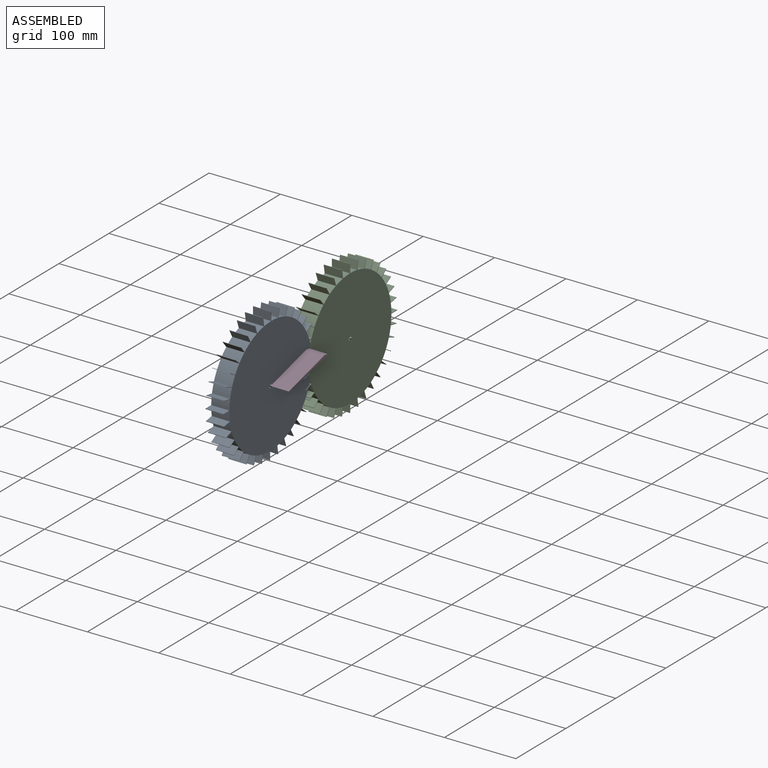
[diagram: assembled view]
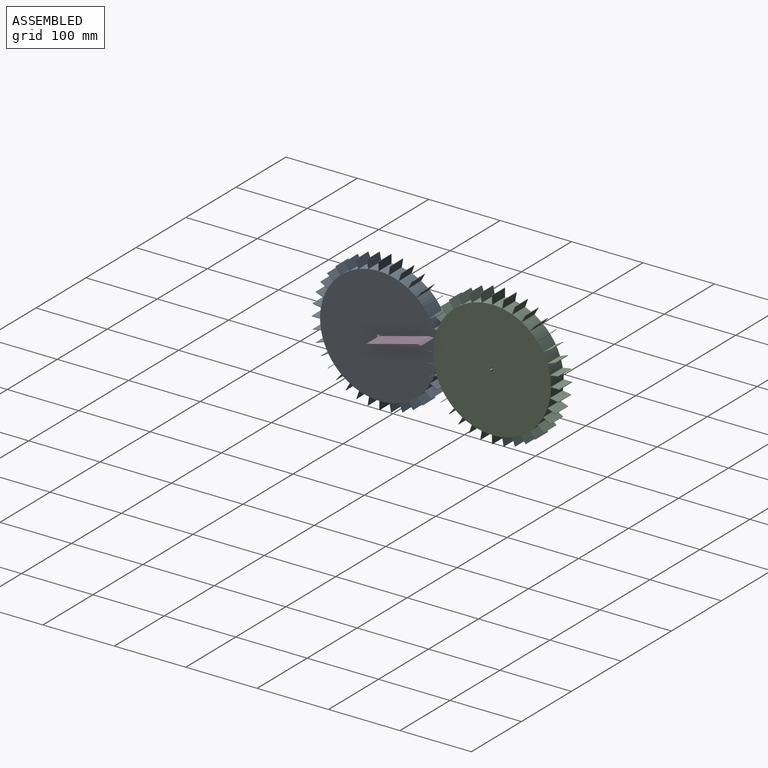
[diagram: assembled view, second angle]
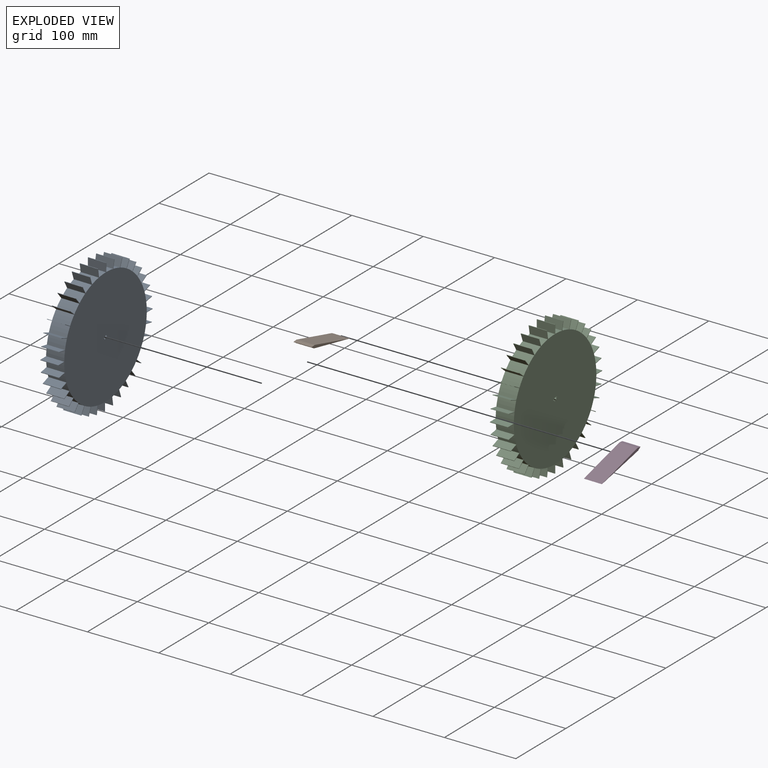
[diagram: exploded view]
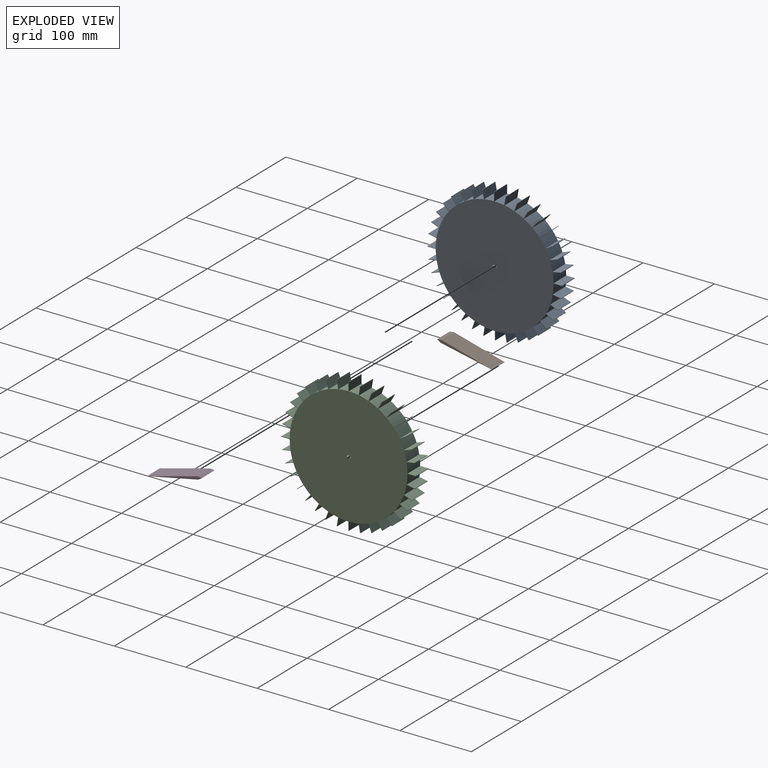
[diagram: exploded view, second angle]
ASSEMBLY  parts=4 mates=2
PART A: 218 faces, bbox 188.5x25.4x188.5 mm
  f0: plane 25.4x1.83mm, normal (-1,0,0), area 46.4mm2, adj f1,f215,f216,f217
  f1: plane 25.4x1.8mm, normal (0.98,0,0.17), area 46.4mm2, adj f0,f2,f216,f217
  f2: plane 25.4x1.8mm, normal (-0.98,0,0.17), area 46.4mm2, adj f1,f3,f216,f217
  f3: plane 25.4x1.83mm, normal (1,0,0), area 46.4mm2, adj f2,f4,f216,f217
  f4: plane 25.4x1.72mm, normal (-0.94,0,0.34), area 46.4mm2, adj f3,f5,f216,f217
  f5: plane 25.4x1.8mm, normal (0.98,0,-0.17), area 46.4mm2, adj f4,f6,f216,f217
  f6: plane 25.4x1.58mm, normal (-0.87,0,0.5), area 46.4mm2, adj f5,f7,f216,f217
  f7: plane 25.4x1.72mm, normal (0.94,0,-0.34), area 46.4mm2, adj f6,f8,f216,f217
  f8: plane 25.4x1.4mm, normal (-0.77,0,0.64), area 46.4mm2, adj f7,f9,f216,f217
  f9: plane 25.4x1.58mm, normal (0.87,0,-0.5), area 46.4mm2, adj f8,f10,f216,f217
  f10: plane 25.4x1.4mm, normal (-0.64,0,0.77), area 46.4mm2, adj f9,f11,f216,f217
  f11: plane 25.4x1.4mm, normal (0.77,0,-0.64), area 46.4mm2, adj f10,f12,f216,f217
  f12: plane 25.4x1.58mm, normal (-0.5,0,0.87), area 46.4mm2, adj f11,f13,f216,f217
  f13: plane 25.4x1.4mm, normal (0.64,0,-0.77), area 46.4mm2, adj f12,f14,f216,f217
  f14: plane 25.4x1.72mm, normal (-0.34,0,0.94), area 46.4mm2, adj f13,f15,f216,f217
  f15: plane 25.4x1.58mm, normal (0.5,0,-0.87), area 46.4mm2, adj f14,f16,f216,f217
  f16: plane 25.4x1.8mm, normal (-0.17,0,0.98), area 46.4mm2, adj f15,f17,f216,f217
  f17: plane 25.4x1.72mm, normal (0.34,0,-0.94), area 46.4mm2, adj f16,f18,f216,f217
  f18: plane 25.4x1.83mm, normal (0,0,1), area 46.4mm2, adj f17,f19,f216,f217
  f19: plane 25.4x1.8mm, normal (0.17,0,-0.98), area 46.4mm2, adj f18,f20,f216,f217
  f20: plane 25.4x1.8mm, normal (0.17,0,0.98), area 46.4mm2, adj f19,f21,f216,f217
  f21: plane 25.4x1.83mm, normal (0,0,-1), area 46.4mm2, adj f20,f22,f216,f217
  f22: plane 25.4x1.72mm, normal (0.34,0,0.94), area 46.4mm2, adj f21,f23,f216,f217
  f23: plane 25.4x1.8mm, normal (-0.17,0,-0.98), area 46.4mm2, adj f22,f24,f216,f217
  f24: plane 25.4x1.58mm, normal (0.5,0,0.87), area 46.4mm2, adj f23,f25,f216,f217
  f25: plane 25.4x1.72mm, normal (-0.34,0,-0.94), area 46.4mm2, adj f24,f26,f216,f217
  f26: plane 25.4x1.4mm, normal (0.64,0,0.77), area 46.4mm2, adj f25,f27,f216,f217
  f27: plane 25.4x1.58mm, normal (-0.5,0,-0.87), area 46.4mm2, adj f26,f28,f216,f217
  f28: plane 25.4x1.4mm, normal (0.77,0,0.64), area 46.4mm2, adj f27,f29,f216,f217
  f29: plane 25.4x1.4mm, normal (-0.64,0,-0.77), area 46.4mm2, adj f28,f30,f216,f217
  f30: plane 25.4x1.58mm, normal (0.87,0,0.5), area 46.4mm2, adj f29,f31,f216,f217
  f31: plane 25.4x1.4mm, normal (-0.77,0,-0.64), area 46.4mm2, adj f30,f32,f216,f217
  f32: plane 25.4x1.72mm, normal (0.94,0,0.34), area 46.4mm2, adj f31,f33,f216,f217
  f33: plane 25.4x1.58mm, normal (-0.87,0,-0.5), area 46.4mm2, adj f32,f34,f216,f217
  f34: plane 25.4x1.8mm, normal (0.98,0,0.17), area 46.4mm2, adj f33,f35,f216,f217
  f35: plane 25.4x1.72mm, normal (-0.94,0,-0.34), area 46.4mm2, adj f34,f36,f216,f217
  f36: plane 25.4x1.83mm, normal (1,0,0), area 46.4mm2, adj f35,f37,f216,f217
  f37: plane 25.4x1.8mm, normal (-0.98,0,-0.17), area 46.4mm2, adj f36,f38,f216,f217
  f38: plane 25.4x1.8mm, normal (0.98,0,-0.17), area 46.4mm2, adj f37,f39,f216,f217
  f39: plane 25.4x1.83mm, normal (-1,0,0), area 46.4mm2, adj f38,f40,f216,f217
  f40: plane 25.4x1.72mm, normal (0.94,0,-0.34), area 46.4mm2, adj f39,f41,f216,f217
  f41: plane 25.4x1.8mm, normal (-0.98,0,0.17), area 46.4mm2, adj f40,f42,f216,f217
  f42: plane 25.4x1.58mm, normal (0.87,0,-0.5), area 46.4mm2, adj f41,f43,f216,f217
  f43: plane 25.4x1.72mm, normal (-0.94,0,0.34), area 46.4mm2, adj f42,f44,f216,f217
  f44: plane 25.4x1.4mm, normal (0.77,0,-0.64), area 46.4mm2, adj f43,f45,f216,f217
  f45: plane 25.4x1.58mm, normal (-0.87,0,0.5), area 46.4mm2, adj f44,f46,f216,f217
  f46: plane 25.4x1.4mm, normal (0.64,0,-0.77), area 46.4mm2, adj f45,f47,f216,f217
  f47: plane 25.4x1.4mm, normal (-0.77,0,0.64), area 46.4mm2, adj f46,f48,f216,f217
  f48: plane 25.4x1.58mm, normal (0.5,0,-0.87), area 46.4mm2, adj f47,f49,f216,f217
  f49: plane 25.4x1.4mm, normal (-0.64,0,0.77), area 46.4mm2, adj f48,f50,f216,f217
  f50: plane 25.4x1.72mm, normal (0.34,0,-0.94), area 46.4mm2, adj f49,f51,f216,f217
  f51: plane 25.4x1.58mm, normal (-0.5,0,0.87), area 46.4mm2, adj f50,f52,f216,f217
  f52: plane 25.4x1.8mm, normal (0.17,0,-0.98), area 46.4mm2, adj f51,f53,f216,f217
  f53: plane 25.4x1.72mm, normal (-0.34,0,0.94), area 46.4mm2, adj f52,f54,f216,f217
  f54: plane 25.4x1.83mm, normal (0,0,-1), area 46.4mm2, adj f53,f55,f216,f217
  f55: plane 25.4x1.8mm, normal (-0.17,0,0.98), area 46.4mm2, adj f54,f56,f216,f217
  f56: plane 25.4x1.8mm, normal (-0.17,0,-0.98), area 46.4mm2, adj f55,f57,f216,f217
  f57: plane 25.4x1.83mm, normal (0,0,1), area 46.4mm2, adj f56,f58,f216,f217
  f58: plane 25.4x1.72mm, normal (-0.34,0,-0.94), area 46.4mm2, adj f57,f59,f216,f217
  f59: plane 25.4x1.8mm, normal (0.17,0,0.98), area 46.4mm2, adj f58,f60,f216,f217
  f60: plane 25.4x1.58mm, normal (-0.5,0,-0.87), area 46.4mm2, adj f59,f61,f216,f217
  f61: plane 25.4x1.72mm, normal (0.34,0,0.94), area 46.4mm2, adj f60,f62,f216,f217
  f62: plane 25.4x1.4mm, normal (-0.64,0,-0.77), area 46.4mm2, adj f61,f63,f216,f217
  f63: plane 25.4x1.58mm, normal (0.5,0,0.87), area 46.4mm2, adj f62,f64,f216,f217
  f64: plane 25.4x1.4mm, normal (-0.77,0,-0.64), area 46.4mm2, adj f63,f65,f216,f217
  f65: plane 25.4x1.4mm, normal (0.64,0,0.77), area 46.4mm2, adj f64,f66,f216,f217
  f66: plane 25.4x1.58mm, normal (-0.87,0,-0.5), area 46.4mm2, adj f65,f67,f216,f217
  f67: plane 25.4x1.4mm, normal (0.77,0,0.64), area 46.4mm2, adj f66,f68,f216,f217
  f68: plane 25.4x1.72mm, normal (-0.94,0,-0.34), area 46.4mm2, adj f67,f69,f216,f217
  f69: plane 25.4x1.58mm, normal (0.87,0,0.5), area 46.4mm2, adj f68,f70,f216,f217
  f70: plane 25.4x1.8mm, normal (-0.98,0,-0.17), area 46.4mm2, adj f69,f215,f216,f217
  f71: plane 25.4x11.58mm, normal (0.98,0,0.17), area 298.5mm2, adj f72,f214,f216,f217
  f72: cylinder r=82.49mm len=25.4mm, axis (0,1,0), area 349.6mm2, adj f71,f73,f216,f217
  f73: plane 25.4x11.05mm, normal (-0.94,0,-0.34), area 298.5mm2, adj f72,f74,f216,f217
  f74: plane 25.4x0.6mm, normal (0.34,0,-0.94), area 16.1mm2, adj f73,f75,f216,f217
  f75: plane 25.4x11.05mm, normal (0.94,0,0.34), area 298.5mm2, adj f74,f76,f216,f217
  f76: cylinder r=82.49mm len=25.4mm, axis (0,1,0), area 349.6mm2, adj f75,f77,f216,f217
  f77: plane 25.4x10.18mm, normal (-0.87,0,-0.5), area 298.5mm2, adj f76,f78,f216,f217
  f78: plane 25.4x0.55mm, normal (0.5,0,-0.87), area 16.1mm2, adj f77,f79,f216,f217
  f79: plane 25.4x10.18mm, normal (0.87,0,0.5), area 298.5mm2, adj f78,f80,f216,f217
  f80: cylinder r=82.49mm len=25.4mm, axis (0,1,0), area 349.6mm2, adj f79,f81,f216,f217
  f81: plane 25.4x9mm, normal (-0.77,0,-0.64), area 298.5mm2, adj f80,f82,f216,f217
  f82: plane 25.4x0.49mm, normal (0.64,0,-0.77), area 16.1mm2, adj f81,f83,f216,f217
  f83: plane 25.4x9mm, normal (0.77,0,0.64), area 298.5mm2, adj f82,f84,f216,f217
  f84: cylinder r=82.49mm len=25.4mm, axis (0,1,0), area 349.6mm2, adj f83,f85,f216,f217
  f85: plane 25.4x9mm, normal (-0.64,0,-0.77), area 298.5mm2, adj f84,f86,f216,f217
  f86: plane 25.4x0.49mm, normal (0.77,0,-0.64), area 16.1mm2, adj f85,f87,f216,f217
  f87: plane 25.4x9mm, normal (0.64,0,0.77), area 298.5mm2, adj f86,f88,f216,f217
  f88: cylinder r=82.49mm len=25.4mm, axis (0,1,0), area 349.6mm2, adj f87,f89,f216,f217
  f89: plane 25.4x10.18mm, normal (-0.5,0,-0.87), area 298.5mm2, adj f88,f90,f216,f217
  f90: plane 25.4x0.55mm, normal (0.87,0,-0.5), area 16.1mm2, adj f89,f91,f216,f217
  f91: plane 25.4x10.18mm, normal (0.5,0,0.87), area 298.5mm2, adj f90,f92,f216,f217
  f92: cylinder r=82.49mm len=25.4mm, axis (0,1,0), area 349.6mm2, adj f91,f93,f216,f217
  f93: plane 25.4x11.05mm, normal (-0.34,0,-0.94), area 298.5mm2, adj f92,f94,f216,f217
  f94: plane 25.4x0.6mm, normal (0.94,0,-0.34), area 16.1mm2, adj f93,f95,f216,f217
  f95: plane 25.4x11.05mm, normal (0.34,0,0.94), area 298.5mm2, adj f94,f96,f216,f217
  f96: cylinder r=82.49mm len=25.4mm, axis (0,1,0), area 349.6mm2, adj f95,f97,f216,f217
  f97: plane 25.4x11.58mm, normal (-0.17,0,-0.98), area 298.5mm2, adj f96,f98,f216,f217
  f98: plane 25.4x0.62mm, normal (0.98,0,-0.17), area 16.1mm2, adj f97,f99,f216,f217
  f99: plane 25.4x11.58mm, normal (0.17,0,0.98), area 298.5mm2, adj f98,f100,f216,f217
  f100: cylinder r=82.49mm len=25.4mm, axis (0,1,0), area 349.6mm2, adj f99,f101,f216,f217
  f101: plane 25.4x11.75mm, normal (0,0,-1), area 298.5mm2, adj f100,f102,f216,f217
  f102: plane 25.4x0.63mm, normal (1,0,0), area 16.1mm2, adj f101,f103,f216,f217
  f103: plane 25.4x11.75mm, normal (0,0,1), area 298.5mm2, adj f102,f104,f216,f217
  f104: cylinder r=82.49mm len=25.4mm, axis (0,1,0), area 349.6mm2, adj f103,f105,f216,f217
  f105: plane 25.4x11.58mm, normal (0.17,0,-0.98), area 298.5mm2, adj f104,f106,f216,f217
  f106: plane 25.4x0.62mm, normal (0.98,0,0.17), area 16.1mm2, adj f105,f107,f216,f217
  f107: plane 25.4x11.58mm, normal (-0.17,0,0.98), area 298.5mm2, adj f106,f108,f216,f217
  f108: cylinder r=82.49mm len=25.4mm, axis (0,1,0), area 349.6mm2, adj f107,f109,f216,f217
  f109: plane 25.4x11.05mm, normal (0.34,0,-0.94), area 298.5mm2, adj f108,f110,f216,f217
  f110: plane 25.4x0.6mm, normal (0.94,0,0.34), area 16.1mm2, adj f109,f111,f216,f217
  f111: plane 25.4x11.05mm, normal (-0.34,0,0.94), area 298.5mm2, adj f110,f112,f216,f217
  f112: cylinder r=82.49mm len=25.4mm, axis (0,1,0), area 349.6mm2, adj f111,f113,f216,f217
  f113: plane 25.4x10.18mm, normal (0.5,0,-0.87), area 298.5mm2, adj f112,f114,f216,f217
  f114: plane 25.4x0.55mm, normal (0.87,0,0.5), area 16.1mm2, adj f113,f115,f216,f217
  f115: plane 25.4x10.18mm, normal (-0.5,0,0.87), area 298.5mm2, adj f114,f116,f216,f217
  f116: cylinder r=82.49mm len=25.4mm, axis (0,1,0), area 349.6mm2, adj f115,f117,f216,f217
  f117: plane 25.4x9mm, normal (0.64,0,-0.77), area 298.5mm2, adj f116,f118,f216,f217
  f118: plane 25.4x0.49mm, normal (0.77,0,0.64), area 16.1mm2, adj f117,f119,f216,f217
  f119: plane 25.4x9mm, normal (-0.64,0,0.77), area 298.5mm2, adj f118,f120,f216,f217
  f120: cylinder r=82.49mm len=25.4mm, axis (0,1,0), area 349.6mm2, adj f119,f121,f216,f217
  f121: plane 25.4x9mm, normal (0.77,0,-0.64), area 298.5mm2, adj f120,f122,f216,f217
  f122: plane 25.4x0.49mm, normal (0.64,0,0.77), area 16.1mm2, adj f121,f123,f216,f217
  f123: plane 25.4x9mm, normal (-0.77,0,0.64), area 298.5mm2, adj f122,f124,f216,f217
  f124: cylinder r=82.49mm len=25.4mm, axis (0,1,0), area 349.6mm2, adj f123,f125,f216,f217
  f125: plane 25.4x10.18mm, normal (0.87,0,-0.5), area 298.5mm2, adj f124,f126,f216,f217
  f126: plane 25.4x0.55mm, normal (0.5,0,0.87), area 16.1mm2, adj f125,f127,f216,f217
  f127: plane 25.4x10.18mm, normal (-0.87,0,0.5), area 298.5mm2, adj f126,f128,f216,f217
  f128: cylinder r=82.49mm len=25.4mm, axis (0,1,0), area 349.6mm2, adj f127,f129,f216,f217
  f129: plane 25.4x11.05mm, normal (0.94,0,-0.34), area 298.5mm2, adj f128,f130,f216,f217
  f130: plane 25.4x0.6mm, normal (0.34,0,0.94), area 16.1mm2, adj f129,f131,f216,f217
  f131: plane 25.4x11.05mm, normal (-0.94,0,0.34), area 298.5mm2, adj f130,f132,f216,f217
  f132: cylinder r=82.49mm len=25.4mm, axis (0,1,0), area 349.6mm2, adj f131,f133,f216,f217
  f133: plane 25.4x11.58mm, normal (0.98,0,-0.17), area 298.5mm2, adj f132,f134,f216,f217
  f134: plane 25.4x0.62mm, normal (0.17,0,0.98), area 16.1mm2, adj f133,f135,f216,f217
  f135: plane 25.4x11.58mm, normal (-0.98,0,0.17), area 298.5mm2, adj f134,f136,f216,f217
  f136: cylinder r=82.49mm len=25.4mm, axis (0,1,0), area 349.6mm2, adj f135,f137,f216,f217
  f137: plane 25.4x11.75mm, normal (1,0,0), area 298.5mm2, adj f136,f138,f216,f217
  f138: plane 25.4x0.63mm, normal (0,0,1), area 16.1mm2, adj f137,f139,f216,f217
  f139: plane 25.4x11.75mm, normal (-1,0,0), area 298.5mm2, adj f138,f140,f216,f217
  f140: cylinder r=82.49mm len=25.4mm, axis (0,1,0), area 349.6mm2, adj f139,f141,f216,f217
  f141: plane 25.4x11.58mm, normal (0.98,0,0.17), area 298.5mm2, adj f140,f142,f216,f217
  f142: plane 25.4x0.62mm, normal (-0.17,0,0.98), area 16.1mm2, adj f141,f143,f216,f217
  f143: plane 25.4x11.58mm, normal (-0.98,0,-0.17), area 298.5mm2, adj f142,f144,f216,f217
  f144: cylinder r=82.49mm len=25.4mm, axis (0,1,0), area 349.6mm2, adj f143,f145,f216,f217
  f145: plane 25.4x11.05mm, normal (0.94,0,0.34), area 298.5mm2, adj f144,f146,f216,f217
  f146: plane 25.4x0.6mm, normal (-0.34,0,0.94), area 16.1mm2, adj f145,f147,f216,f217
  f147: plane 25.4x11.05mm, normal (-0.94,0,-0.34), area 298.5mm2, adj f146,f148,f216,f217
  f148: cylinder r=82.49mm len=25.4mm, axis (0,1,0), area 349.6mm2, adj f147,f149,f216,f217
  f149: plane 25.4x10.18mm, normal (0.87,0,0.5), area 298.5mm2, adj f148,f150,f216,f217
  f150: plane 25.4x0.55mm, normal (-0.5,0,0.87), area 16.1mm2, adj f149,f151,f216,f217
  f151: plane 25.4x10.18mm, normal (-0.87,0,-0.5), area 298.5mm2, adj f150,f152,f216,f217
  f152: cylinder r=82.49mm len=25.4mm, axis (0,1,0), area 349.6mm2, adj f151,f153,f216,f217
  f153: plane 25.4x9mm, normal (0.77,0,0.64), area 298.5mm2, adj f152,f154,f216,f217
  f154: plane 25.4x0.49mm, normal (-0.64,0,0.77), area 16.1mm2, adj f153,f155,f216,f217
  f155: plane 25.4x9mm, normal (-0.77,0,-0.64), area 298.5mm2, adj f154,f156,f216,f217
  f156: cylinder r=82.49mm len=25.4mm, axis (0,1,0), area 349.6mm2, adj f155,f157,f216,f217
  f157: plane 25.4x9mm, normal (0.64,0,0.77), area 298.5mm2, adj f156,f158,f216,f217
  f158: plane 25.4x0.49mm, normal (-0.77,0,0.64), area 16.1mm2, adj f157,f159,f216,f217
  f159: plane 25.4x9mm, normal (-0.64,0,-0.77), area 298.5mm2, adj f158,f160,f216,f217
  f160: cylinder r=82.49mm len=25.4mm, axis (0,1,0), area 349.6mm2, adj f159,f161,f216,f217
  f161: plane 25.4x10.18mm, normal (0.5,0,0.87), area 298.5mm2, adj f160,f162,f216,f217
  f162: plane 25.4x0.55mm, normal (-0.87,0,0.5), area 16.1mm2, adj f161,f163,f216,f217
  f163: plane 25.4x10.18mm, normal (-0.5,0,-0.87), area 298.5mm2, adj f162,f164,f216,f217
  f164: cylinder r=82.49mm len=25.4mm, axis (0,1,0), area 349.6mm2, adj f163,f165,f216,f217
  f165: plane 25.4x11.05mm, normal (0.34,0,0.94), area 298.5mm2, adj f164,f166,f216,f217
  f166: plane 25.4x0.6mm, normal (-0.94,0,0.34), area 16.1mm2, adj f165,f167,f216,f217
  f167: plane 25.4x11.05mm, normal (-0.34,0,-0.94), area 298.5mm2, adj f166,f168,f216,f217
  f168: cylinder r=82.49mm len=25.4mm, axis (0,1,0), area 349.6mm2, adj f167,f169,f216,f217
  f169: plane 25.4x11.58mm, normal (0.17,0,0.98), area 298.5mm2, adj f168,f170,f216,f217
  f170: plane 25.4x0.62mm, normal (-0.98,0,0.17), area 16.1mm2, adj f169,f171,f216,f217
  f171: plane 25.4x11.58mm, normal (-0.17,0,-0.98), area 298.5mm2, adj f170,f172,f216,f217
  f172: cylinder r=82.49mm len=25.4mm, axis (0,1,0), area 349.6mm2, adj f171,f173,f216,f217
  f173: plane 25.4x11.75mm, normal (0,0,1), area 298.5mm2, adj f172,f174,f216,f217
  f174: plane 25.4x0.63mm, normal (-1,0,0), area 16.1mm2, adj f173,f175,f216,f217
  f175: plane 25.4x11.75mm, normal (0,0,-1), area 298.5mm2, adj f174,f176,f216,f217
  f176: cylinder r=82.49mm len=25.4mm, axis (0,1,0), area 349.6mm2, adj f175,f177,f216,f217
  f177: plane 25.4x11.58mm, normal (-0.17,0,0.98), area 298.5mm2, adj f176,f178,f216,f217
  f178: plane 25.4x0.62mm, normal (-0.98,0,-0.17), area 16.1mm2, adj f177,f179,f216,f217
  f179: plane 25.4x11.58mm, normal (0.17,0,-0.98), area 298.5mm2, adj f178,f180,f216,f217
  f180: cylinder r=82.49mm len=25.4mm, axis (0,1,0), area 349.6mm2, adj f179,f181,f216,f217
  f181: plane 25.4x11.05mm, normal (-0.34,0,0.94), area 298.5mm2, adj f180,f182,f216,f217
  f182: plane 25.4x0.6mm, normal (-0.94,0,-0.34), area 16.1mm2, adj f181,f183,f216,f217
  f183: plane 25.4x11.05mm, normal (0.34,0,-0.94), area 298.5mm2, adj f182,f184,f216,f217
  f184: cylinder r=82.49mm len=25.4mm, axis (0,1,0), area 349.6mm2, adj f183,f185,f216,f217
  f185: plane 25.4x10.18mm, normal (-0.5,0,0.87), area 298.5mm2, adj f184,f186,f216,f217
  f186: plane 25.4x0.55mm, normal (-0.87,0,-0.5), area 16.1mm2, adj f185,f187,f216,f217
  f187: plane 25.4x10.18mm, normal (0.5,0,-0.87), area 298.5mm2, adj f186,f188,f216,f217
  f188: cylinder r=82.49mm len=25.4mm, axis (0,1,0), area 349.6mm2, adj f187,f189,f216,f217
  f189: plane 25.4x9mm, normal (-0.64,0,0.77), area 298.5mm2, adj f188,f190,f216,f217
  f190: plane 25.4x0.49mm, normal (-0.77,0,-0.64), area 16.1mm2, adj f189,f191,f216,f217
  f191: plane 25.4x9mm, normal (0.64,0,-0.77), area 298.5mm2, adj f190,f192,f216,f217
  f192: cylinder r=82.49mm len=25.4mm, axis (0,1,0), area 349.6mm2, adj f191,f193,f216,f217
  f193: plane 25.4x9mm, normal (-0.77,0,0.64), area 298.5mm2, adj f192,f194,f216,f217
  f194: plane 25.4x0.49mm, normal (-0.64,0,-0.77), area 16.1mm2, adj f193,f195,f216,f217
  f195: plane 25.4x9mm, normal (0.77,0,-0.64), area 298.5mm2, adj f194,f196,f216,f217
  f196: cylinder r=82.49mm len=25.4mm, axis (0,1,0), area 349.6mm2, adj f195,f197,f216,f217
  f197: plane 25.4x10.18mm, normal (-0.87,0,0.5), area 298.5mm2, adj f196,f198,f216,f217
  f198: plane 25.4x0.55mm, normal (-0.5,0,-0.87), area 16.1mm2, adj f197,f199,f216,f217
  f199: plane 25.4x10.18mm, normal (0.87,0,-0.5), area 298.5mm2, adj f198,f200,f216,f217
  f200: cylinder r=82.49mm len=25.4mm, axis (0,1,0), area 349.6mm2, adj f199,f201,f216,f217
  f201: plane 25.4x11.05mm, normal (-0.94,0,0.34), area 298.5mm2, adj f200,f202,f216,f217
  f202: plane 25.4x0.6mm, normal (-0.34,0,-0.94), area 16.1mm2, adj f201,f203,f216,f217
  f203: plane 25.4x11.05mm, normal (0.94,0,-0.34), area 298.5mm2, adj f202,f204,f216,f217
  f204: cylinder r=82.49mm len=25.4mm, axis (0,1,0), area 349.6mm2, adj f203,f205,f216,f217
  f205: plane 25.4x11.58mm, normal (-0.98,0,0.17), area 298.5mm2, adj f204,f206,f216,f217
  f206: plane 25.4x0.62mm, normal (-0.17,0,-0.98), area 16.1mm2, adj f205,f207,f216,f217
  f207: plane 25.4x11.58mm, normal (0.98,0,-0.17), area 298.5mm2, adj f206,f208,f216,f217
  f208: cylinder r=82.49mm len=25.4mm, axis (0,1,0), area 349.6mm2, adj f207,f209,f216,f217
  f209: plane 25.4x11.75mm, normal (-1,0,0), area 298.5mm2, adj f208,f210,f216,f217
  f210: plane 25.4x0.63mm, normal (0,0,-1), area 16.1mm2, adj f209,f211,f216,f217
  f211: plane 25.4x11.75mm, normal (1,0,0), area 298.5mm2, adj f210,f212,f216,f217
  f212: cylinder r=82.49mm len=25.4mm, axis (0,1,0), area 349.6mm2, adj f211,f213,f216,f217
  f213: plane 25.4x11.58mm, normal (-0.98,0,-0.17), area 298.5mm2, adj f212,f214,f216,f217
  f214: plane 25.4x0.62mm, normal (0.17,0,-0.98), area 16.1mm2, adj f71,f213,f216,f217
  f215: plane 25.4x1.72mm, normal (0.94,0,0.34), area 46.4mm2, adj f0,f70,f216,f217
  f216: plane 188.49x188.49mm, normal (0,-1,0), area 21626.3mm2, adj f0,f1,f2,f3,f4,f5,f6,f7
  f217: plane 188.49x188.49mm, normal (0,1,0), area 21626.3mm2, adj f0,f1,f2,f3,f4,f5,f6,f7
PART B: 6 faces, bbox 4.1x25.4x79.2 mm
  f0: plane 25.4x5.57mm, normal (0.94,0,0.34), area 150.7mm2, adj f1,f3,f4,f5
  f1: plane 25.4x5.57mm, normal (-0.94,0,0.34), area 150.7mm2, adj f0,f2,f4,f5
  f2: plane 73.58x25.4mm, normal (-1,0,-0.03), area 1869.7mm2, adj f1,f3,f4,f5
  f3: plane 73.58x25.4mm, normal (1,0,-0.03), area 1869.7mm2, adj f0,f2,f4,f5
  f4: plane 79.16x4.06mm, normal (0,-1,0), area 160.6mm2, adj f0,f1,f2,f3
  f5: plane 79.16x4.06mm, normal (0,1,0), area 160.6mm2, adj f0,f1,f2,f3
PART C: same geometry as A
PART D: same geometry as B
PLACE A rot(axis=(0.01,0.01,1),90deg) t=(-11.87,-9.95,-3.82)mm fixed
PLACE B rot(axis=(0.53,0.53,-0.67),112.7deg) t=(13.85,89.31,-130.61)mm
PLACE C rot(axis=(0.58,0.58,-0.58),120deg) t=(13.85,148.61,-4.37)mm fixed
PLACE D rot(axis=(-0.52,0.53,0.67),113deg) t=(12.21,49.35,-130.32)mm
MATE revolute D.f5 <-> A.f72  axis (-1,0,0.01) through (13.52,-9.95,-4.09)mm
MATE revolute C.f72 <-> B.f5  axis (1,0,0) through (13.85,148.61,-4.37)mm
